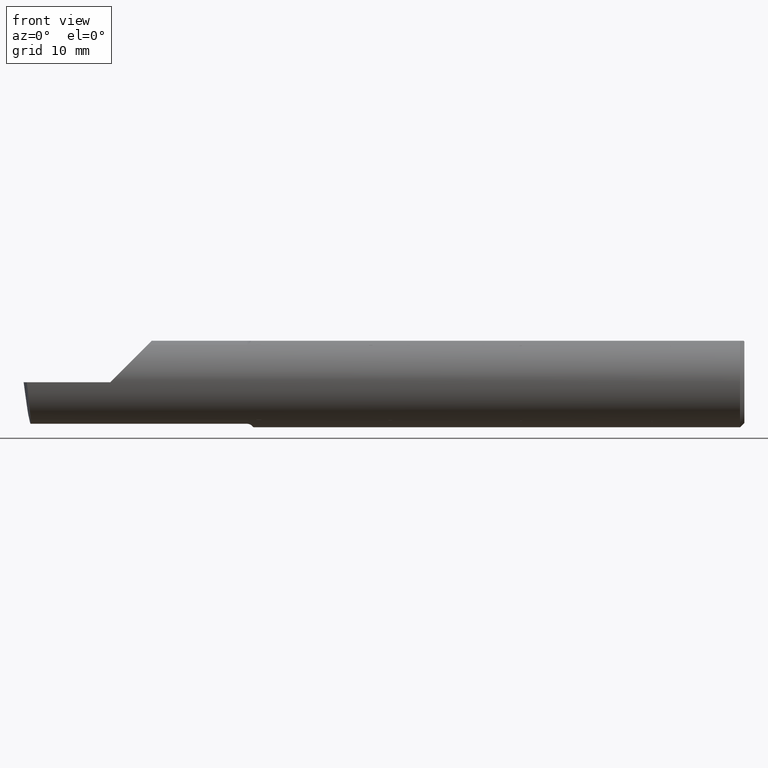
[diagram: clean part render]
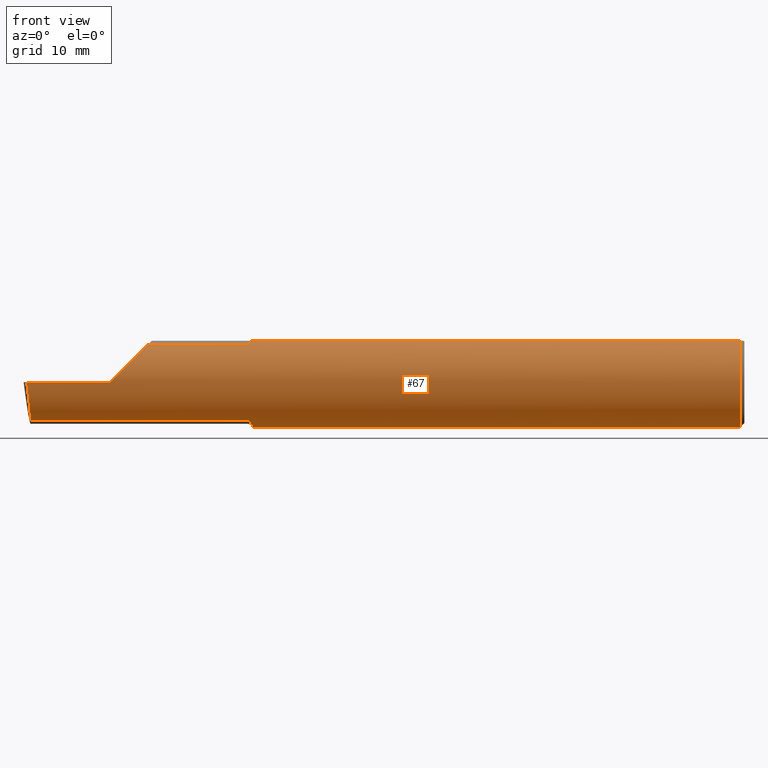
[diagram: same view with one face highlighted and labeled with its STEP entity id]
A machine part, front view. The second image highlights one B-rep face of the part: STEP entity #67.
In plain terms, the highlighted cylindrical surface (partial cylindrical patch) has radius 3.9649 mm, axis along (1, -0, -0).
Its self-contained STEP definition (entity closure, byte-faithful):
#4 = VERTEX_POINT ( 'NONE', #36 ) ;
#7 = CARTESIAN_POINT ( 'NONE',  ( -1.704862523376329708, -0.02500000000022616076, -0.1540850739039595629 ) ) ;
#10 = CARTESIAN_POINT ( 'NONE',  ( -0.01500000000000024925, 0.000000000000000000, -0.1560999999999999888 ) ) ;
#13 = ORIENTED_EDGE ( 'NONE', *, *, #453, .T. ) ;
#18 = EDGE_CURVE ( 'NONE', #655, #733, #139, .T. ) ;
#36 = CARTESIAN_POINT ( 'NONE',  ( -1.724999999999999867, -0.08569999999999909635, -0.1304711462354805340 ) ) ;
#42 = CARTESIAN_POINT ( 'NONE',  ( -2.489266190342419360, -0.1561000000000000165, 3.826894855694925850E-18 ) ) ;
#46 = LINE ( 'NONE', #679, #307 ) ;
#60 = CARTESIAN_POINT ( 'NONE',  ( -1.703095797791018606, -0.008405471570478818127, -0.1561000000000260235 ) ) ;
#67 = ADVANCED_FACE ( 'NONE', ( #352 ), #230, .T. ) ;
#68 = CARTESIAN_POINT ( 'NONE',  ( -2.477743596163800799, -0.1305938407426046888, -0.1009826174484544509 ) ) ;
#71 = VECTOR ( 'NONE', #466, 39.37007874015748143 ) ;
#76 = CARTESIAN_POINT ( 'NONE',  ( -2.482667168175673122, -0.1560999999999999888, -0.05371247775559880727 ) ) ;
#82 = VERTEX_POINT ( 'NONE', #512 ) ;
#84 = CARTESIAN_POINT ( 'NONE',  ( -1.716062054560814065, -0.07627963852233772546, -0.1362221433799753467 ) ) ;
#93 = CARTESIAN_POINT ( 'NONE',  ( -1.972499999999999698, -0.08569999999999904083, -0.1304711462354805618 ) ) ;
#105 = CARTESIAN_POINT ( 'NONE',  ( -2.500000000000000000, 0.000000000000000000, -0.1560999999999999888 ) ) ;
#110 = CARTESIAN_POINT ( 'NONE',  ( -1.716324726609743223, -0.07684337455390469196, 0.1359013108991526941 ) ) ;
#123 = EDGE_CURVE ( 'NONE', #710, #306, #741, .T. ) ;
#134 = CARTESIAN_POINT ( 'NONE',  ( -0.01500000000000024925, -0.06001999666777732556, 0.1440999999999999781 ) ) ;
#139 = B_SPLINE_CURVE_WITH_KNOTS ( 'NONE', 3,
 ( #674, #638, #220, #110, #459, #337, #174, #630, #518, #746 ),
 .UNSPECIFIED., .F., .F.,
 ( 4, 2, 2, 2, 4 ),
 ( 5.292347910183899821E-07, 0.0004247077115782289282, 0.0006367969499718310368, 0.0007428415691686376205, 0.0008488861883654442043 ),
 .UNSPECIFIED. ) ;
#141 = CARTESIAN_POINT ( 'NONE',  ( -1.706230440715366337, -0.03646003586407838004, -0.1522257056384943574 ) ) ;
#145 = CARTESIAN_POINT ( 'NONE',  ( -1.707963511987623750, -0.04781653154435649977, -0.1490354188630819143 ) ) ;
#157 = CARTESIAN_POINT ( 'NONE',  ( -2.099017382551543243, -0.1305938407426031900, 0.1009826174484572542 ) ) ;
#161 = DIRECTION ( 'NONE',  ( 1.000000000000000000, -0.000000000000000000, -0.000000000000000000 ) ) ;
#166 = ORIENTED_EDGE ( 'NONE', *, *, #319, .T. ) ;
#174 = CARTESIAN_POINT ( 'NONE',  ( -1.720308733175471838, -0.08325729668116084448, 0.1320471792325039750 ) ) ;
#178 = CARTESIAN_POINT ( 'NONE',  ( -2.056000000000000050, -0.1560999999999999888, 3.826894855694925850E-18 ) ) ;
#180 = ORIENTED_EDGE ( 'NONE', *, *, #583, .T. ) ;
#182 = CARTESIAN_POINT ( 'NONE',  ( -2.199999999999999289, -0.1560999999999999888, 3.826894855694925850E-18 ) ) ;
#191 = CARTESIAN_POINT ( 'NONE',  ( -1.702458313762935216, 4.839648990909927173E-13, -0.1560999999999999888 ) ) ;
#196 = CARTESIAN_POINT ( 'NONE',  ( -1.722162220462625237, -0.08489276752862805198, -0.1310023188550722140 ) ) ;
#199 = B_SPLINE_CURVE_WITH_KNOTS ( 'NONE', 3,
 ( #545, #491, #196, #654, #662, #441, #84, #494, #375, #145, #141, #561 ),
 .UNSPECIFIED., .F., .F.,
 ( 4, 2, 2, 2, 2, 4 ),
 ( 1.966861314629960346E-07, 0.0001139043861855430702, 0.0002276120862396231379, 0.0004550274863477822974, 0.0009098582865640994239, 0.001819519886996738773 ),
 .UNSPECIFIED. ) ;
#201 = ORIENTED_EDGE ( 'NONE', *, *, #311, .T. ) ;
#207 = CARTESIAN_POINT ( 'NONE',  ( -1.724999999999999867, -0.08569999999999887430, 0.1304711462354806450 ) ) ;
#210 = LINE ( 'NONE', #93, #312 ) ;
#220 = CARTESIAN_POINT ( 'NONE',  ( -1.713486186723763405, -0.06993940022577664617, 0.1396536156489263103 ) ) ;
#230 = CYLINDRICAL_SURFACE ( 'NONE', #609, 0.1560999999999999888 ) ;
#233 =( BOUNDED_CURVE ( )  B_SPLINE_CURVE ( 3, ( #435, #157, #551, #388 ),
 .UNSPECIFIED., .F., .F. ) 
 B_SPLINE_CURVE_WITH_KNOTS ( ( 4, 4 ),
 ( 0.5811757715714180872, 1.570796326794896558 ),
 .UNSPECIFIED. ) 
 CURVE ( )  GEOMETRIC_REPRESENTATION_ITEM ( )  RATIONAL_B_SPLINE_CURVE ( ( 1.000000000000000000, 0.9200392120919920202, 0.9200392120919920202, 1.000000000000000000 ) ) 
 REPRESENTATION_ITEM ( '' )  );
#248 = CARTESIAN_POINT ( 'NONE',  ( -1.710843495424060334, -0.06001999666777307202, 0.1440999999999999504 ) ) ;
#254 = ORIENTED_EDGE ( 'NONE', *, *, #686, .T. ) ;
#272 = ORIENTED_EDGE ( 'NONE', *, *, #503, .T. ) ;
#283 = EDGE_CURVE ( 'NONE', #498, #82, #591, .T. ) ;
#288 = ORIENTED_EDGE ( 'NONE', *, *, #18, .T. ) ;
#292 = CARTESIAN_POINT ( 'NONE',  ( -2.500000000000000000, 0.000000000000000000, 0.000000000000000000 ) ) ;
#296 = DIRECTION ( 'NONE',  ( 0.000000000000000000, 0.000000000000000000, 1.000000000000000000 ) ) ;
#306 = VERTEX_POINT ( 'NONE', #134 ) ;
#307 = VECTOR ( 'NONE', #570, 39.37007874015748143 ) ;
#308 = CARTESIAN_POINT ( 'NONE',  ( -1.703876643924216117, -0.01674057265308589657, -0.1554251497364122214 ) ) ;
#310 = ORIENTED_EDGE ( 'NONE', *, *, #324, .T. ) ;
#311 = EDGE_CURVE ( 'NONE', #4, #449, #199, .T. ) ;
#312 = VECTOR ( 'NONE', #328, 39.37007874015748143 ) ;
#316 = CARTESIAN_POINT ( 'NONE',  ( -2.475676552398977215, -0.08569999999999904083, -0.1304711462354805618 ) ) ;
#318 = CARTESIAN_POINT ( 'NONE',  ( -2.069528853764518228, -0.08569999999999516893, 0.1304711462354827267 ) ) ;
#319 = EDGE_CURVE ( 'NONE', #82, #4, #210, .T. ) ;
#324 = EDGE_CURVE ( 'NONE', #733, #372, #380, .T. ) ;
#328 = DIRECTION ( 'NONE',  ( 1.000000000000000000, -0.000000000000000000, -0.000000000000000000 ) ) ;
#337 = CARTESIAN_POINT ( 'NONE',  ( -1.719508261956889772, -0.08224208440130439945, 0.1326837206089799548 ) ) ;
#341 = VECTOR ( 'NONE', #406, 39.37007874015748143 ) ;
#345 = EDGE_CURVE ( 'NONE', #372, #652, #233, .T. ) ;
#352 = FACE_OUTER_BOUND ( 'NONE', #355, .T. ) ;
#355 = EDGE_LOOP ( 'NONE', ( #201, #254, #272, #692, #180, #288, #310, #552, #13, #664, #166 ) ) ;
#372 = VERTEX_POINT ( 'NONE', #318 ) ;
#375 = CARTESIAN_POINT ( 'NONE',  ( -1.711707069840809448, -0.06372296352525391727, -0.1426158673174761915 ) ) ;
#380 = LINE ( 'NONE', #548, #694 ) ;
#385 = CARTESIAN_POINT ( 'NONE',  ( -1.704862523376329708, -0.02500000000022616076, -0.1540850739039595629 ) ) ;
#388 = CARTESIAN_POINT ( 'NONE',  ( -2.199999999999999289, -0.1560999999999999888, 3.826894855694925850E-18 ) ) ;
#406 = DIRECTION ( 'NONE',  ( 1.000000000000000000, -0.000000000000000000, -0.000000000000000000 ) ) ;
#435 = CARTESIAN_POINT ( 'NONE',  ( -2.069528853764518228, -0.08569999999999516893, 0.1304711462354827267 ) ) ;
#441 = CARTESIAN_POINT ( 'NONE',  ( -1.717151728812752243, -0.07866717671370081211, -0.1348531152278543699 ) ) ;
#449 = VERTEX_POINT ( 'NONE', #385 ) ;
#451 = LINE ( 'NONE', #105, #341 ) ;
#453 = EDGE_CURVE ( 'NONE', #652, #498, #462, .T. ) ;
#456 = DIRECTION ( 'NONE',  ( 0.000000000000000000, 0.000000000000000000, -1.000000000000000000 ) ) ;
#459 = CARTESIAN_POINT ( 'NONE',  ( -1.717376702052391790, -0.07908290169519939516, 0.1346075232099599173 ) ) ;
#462 = LINE ( 'NONE', #178, #71 ) ;
#466 = DIRECTION ( 'NONE',  ( -1.000000000000000000, -0.000000000000000000, -0.000000000000000000 ) ) ;
#491 = CARTESIAN_POINT ( 'NONE',  ( -1.723482932671292378, -0.08569999999999899920, -0.1304711462354805895 ) ) ;
#494 = CARTESIAN_POINT ( 'NONE',  ( -1.713126895908788638, -0.06887538526317409093, -0.1401954838979545259 ) ) ;
#498 = VERTEX_POINT ( 'NONE', #42 ) ;
#503 = EDGE_CURVE ( 'NONE', #587, #710, #451, .T. ) ;
#512 = CARTESIAN_POINT ( 'NONE',  ( -2.475676552398977215, -0.08569999999999904083, -0.1304711462354805618 ) ) ;
#517 = CARTESIAN_POINT ( 'NONE',  ( -1.702458313762935216, 4.839648990909927173E-13, -0.1560999999999999888 ) ) ;
#518 = CARTESIAN_POINT ( 'NONE',  ( -1.723558490372086416, -0.08570000000287412989, 0.1304711462335923500 ) ) ;
#545 = CARTESIAN_POINT ( 'NONE',  ( -1.724999999999999867, -0.08569999999999909635, -0.1304711462354805340 ) ) ;
#548 = CARTESIAN_POINT ( 'NONE',  ( -1.972499999999999698, -0.08569999999999904083, 0.1304711462354805618 ) ) ;
#551 = CARTESIAN_POINT ( 'NONE',  ( -2.146287522244399781, -0.1560999999999999888, 0.05371247775560051424 ) ) ;
#552 = ORIENTED_EDGE ( 'NONE', *, *, #345, .T. ) ;
#561 = CARTESIAN_POINT ( 'NONE',  ( -1.704862523376329708, -0.02500000000022616076, -0.1540850739039595629 ) ) ;
#570 = DIRECTION ( 'NONE',  ( -1.000000000000000000, 0.000000000000000000, 0.000000000000000000 ) ) ;
#583 = EDGE_CURVE ( 'NONE', #306, #655, #46, .T. ) ;
#586 = CARTESIAN_POINT ( 'NONE',  ( -2.489266190342419360, -0.1561000000000000165, 3.826894855694925850E-18 ) ) ;
#587 = VERTEX_POINT ( 'NONE', #517 ) ;
#591 =( BOUNDED_CURVE ( )  B_SPLINE_CURVE ( 3, ( #586, #76, #68, #316 ),
 .UNSPECIFIED., .F., .F. ) 
 B_SPLINE_CURVE_WITH_KNOTS ( ( 4, 4 ),
 ( 4.987330662103025780, 5.976951217326475607 ),
 .UNSPECIFIED. ) 
 CURVE ( )  GEOMETRIC_REPRESENTATION_ITEM ( )  RATIONAL_B_SPLINE_CURVE ( ( 1.000000000000000000, 0.9200392120919965722, 0.9200392120919965722, 1.000000000000000000 ) ) 
 REPRESENTATION_ITEM ( '' )  );
#609 = AXIS2_PLACEMENT_3D ( 'NONE', #292, #161, #456 ) ;
#625 = CARTESIAN_POINT ( 'NONE',  ( -0.01500000000000024925, 0.000000000000000000, 0.000000000000000000 ) ) ;
#630 = CARTESIAN_POINT ( 'NONE',  ( -1.722282960142826447, -0.08496306084893928690, 0.1309561502377620257 ) ) ;
#638 = CARTESIAN_POINT ( 'NONE',  ( -1.712083001804619142, -0.06507129184707158287, 0.1419960532975074186 ) ) ;
#652 = VERTEX_POINT ( 'NONE', #182 ) ;
#654 = CARTESIAN_POINT ( 'NONE',  ( -1.720128093538975111, -0.08306175160951202729, -0.1321708551218286343 ) ) ;
#655 = VERTEX_POINT ( 'NONE', #248 ) ;
#662 = CARTESIAN_POINT ( 'NONE',  ( -1.719310887745681748, -0.08198244806377522065, -0.1328448627315365060 ) ) ;
#664 = ORIENTED_EDGE ( 'NONE', *, *, #283, .T. ) ;
#666 = DIRECTION ( 'NONE',  ( -1.000000000000000000, 0.000000000000000000, 0.000000000000000000 ) ) ;
#668 = AXIS2_PLACEMENT_3D ( 'NONE', #625, #735, #296 ) ;
#674 = CARTESIAN_POINT ( 'NONE',  ( -1.710843495424060334, -0.06001999666777307202, 0.1440999999999999504 ) ) ;
#679 = CARTESIAN_POINT ( 'NONE',  ( -2.500000000000000000, -0.06001999666777736719, 0.1440999999999999504 ) ) ;
#686 = EDGE_CURVE ( 'NONE', #449, #587, #744, .T. ) ;
#692 = ORIENTED_EDGE ( 'NONE', *, *, #123, .T. ) ;
#694 = VECTOR ( 'NONE', #666, 39.37007874015748143 ) ;
#710 = VERTEX_POINT ( 'NONE', #10 ) ;
#733 = VERTEX_POINT ( 'NONE', #207 ) ;
#735 = DIRECTION ( 'NONE',  ( -1.000000000000000000, 0.000000000000000000, 0.000000000000000000 ) ) ;
#741 = CIRCLE ( 'NONE', #668, 0.1560999999999999888 ) ;
#744 = B_SPLINE_CURVE_WITH_KNOTS ( 'NONE', 3,
 ( #7, #308, #60, #191 ),
 .UNSPECIFIED., .F., .F.,
 ( 4, 4 ),
 ( 0.001819519886996738773, 0.002475127250578863358 ),
 .UNSPECIFIED. ) ;
#746 = CARTESIAN_POINT ( 'NONE',  ( -1.724999999999999867, -0.08569999999999887430, 0.1304711462354806450 ) ) ;